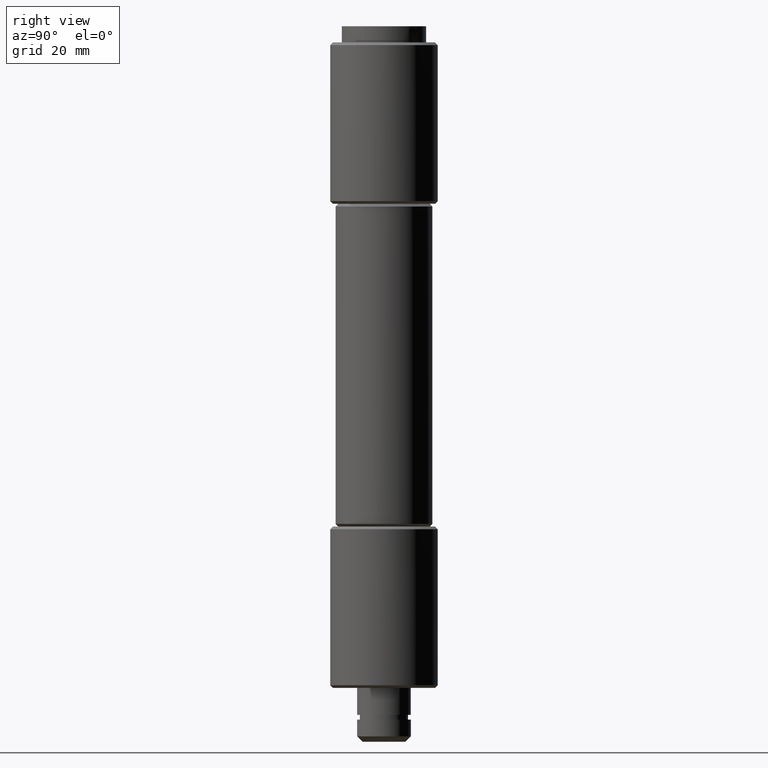
[diagram: clean part render]
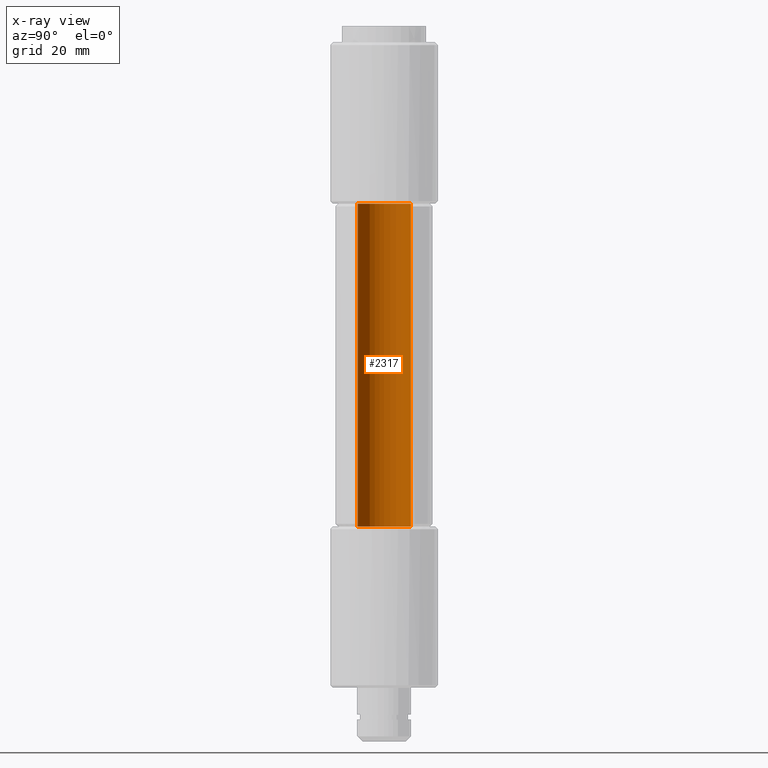
[diagram: x-ray — body ghosted, one internal face saturated and labeled with its STEP entity id]
A machine part, right view, then the same camera in x-ray: the body is ghosted and one INTERNAL B-rep face — a face not visible from any outside direction — is saturated and labeled: STEP entity #2317.
In plain terms, the highlighted face is a freeform B-spline surface patch.
Its self-contained STEP definition (entity closure, byte-faithful):
#2215=CARTESIAN_POINT('',(0.590171173283792,-4.965047631818332,101.500000000000030));
#2216=CARTESIAN_POINT('',(0.448073643189888,-4.981938077243028,101.500000000000010));
#2217=CARTESIAN_POINT('',(0.305242697674285,-4.990673992109334,101.500000000000000));
#2218=CARTESIAN_POINT('',(-4.685431294435048,-5.295916689783620,101.500000000000010));
#2219=CARTESIAN_POINT('',(-4.990673992109334,-0.305242697674285,101.500000000000000));
#2220=CARTESIAN_POINT('',(-5.295916689783620,4.685431294435048,101.500000000000010));
#2221=CARTESIAN_POINT('',(-0.305242697674285,4.990673992109334,101.500000000000000));
#2222=CARTESIAN_POINT('',(0.590171173283792,-4.965047631818332,38.462500000000006));
#2223=CARTESIAN_POINT('',(0.448073643189888,-4.981938077243028,38.462499999999999));
#2224=CARTESIAN_POINT('',(0.305242697674285,-4.990673992109334,38.462499999999991));
#2225=CARTESIAN_POINT('',(-4.685431294435048,-5.295916689783620,38.462499999999991));
#2226=CARTESIAN_POINT('',(-4.990673992109334,-0.305242697674285,38.462499999999991));
#2227=CARTESIAN_POINT('',(-5.295916689783620,4.685431294435048,38.462499999999991));
#2228=CARTESIAN_POINT('',(-0.305242697674285,4.990673992109334,38.462499999999991));
#2236=(BOUNDED_SURFACE()B_SPLINE_SURFACE(2,1,((#2215,#2222),(#2216,#2223),(#2217,#2224),(#2218,#2225),(#2219,#2226),(#2220,#2227),(#2221,#2228)),.UNSPECIFIED.,.F.,.F.,.U.)B_SPLINE_SURFACE_WITH_KNOTS((3,2,2,3),(2,2),(0.0,0.331370849898476,8.615642097360375,16.899913344822270),(0.0,63.037500000000023),.UNSPECIFIED.)GEOMETRIC_REPRESENTATION_ITEM()RATIONAL_B_SPLINE_SURFACE(((0.977505800795127,0.977505800795127),(0.988284271247462,0.988284271247462),(1.0,1.0),(0.707106781186548,0.707106781186548),(1.0,1.0),(0.707106781186548,0.707106781186548),(1.0,1.0)))REPRESENTATION_ITEM('')SURFACE());
#2237=CARTESIAN_POINT('',(0.590171173576404,-4.965047631783550,40.0));
#2238=VERTEX_POINT('',#2237);
#2239=CARTESIAN_POINT('',(-5.0,0.0,40.0));
#2240=VERTEX_POINT('',#2239);
#2241=CARTESIAN_POINT('',(0.590171173576404,-4.965047631783550,40.0));
#2242=CARTESIAN_POINT('',(0.296120598555256,-5.000000000000001,39.999999999999993));
#2243=CARTESIAN_POINT('',(0.0,-5.0,40.0));
#2244=CARTESIAN_POINT('',(-5.000000000000001,-5.000000000000001,39.999999999999993));
#2245=CARTESIAN_POINT('',(-5.0,0.0,40.0));
#2253=(BOUNDED_CURVE()B_SPLINE_CURVE(2,(#2241,#2242,#2243,#2244,#2245),.UNSPECIFIED.,.F.,.U.)B_SPLINE_CURVE_WITH_KNOTS((3,2,3),(0.229562473495724,0.250000000000000,0.500000000000000),.UNSPECIFIED.)CURVE()GEOMETRIC_REPRESENTATION_ITEM()RATIONAL_B_SPLINE_CURVE((0.956026754148841,0.976055948310310,1.0,0.707106781186548,1.0))REPRESENTATION_ITEM(''));
#2254=EDGE_CURVE('',#2238,#2240,#2253,.T.);
#2255=ORIENTED_EDGE('',*,*,#2254,.T.);
#2256=CARTESIAN_POINT('',(-0.305242697984912,4.990673992090336,39.999999999999993));
#2257=VERTEX_POINT('',#2256);
#2258=CARTESIAN_POINT('',(-5.0,0.0,40.0));
#2259=CARTESIAN_POINT('',(-5.0,4.703530333941859,39.999999999999993));
#2260=CARTESIAN_POINT('',(-0.305242697984912,4.990673992090336,39.999999999999986));
#2268=(BOUNDED_CURVE()B_SPLINE_CURVE(2,(#2258,#2259,#2260),.UNSPECIFIED.,.F.,.U.)B_SPLINE_CURVE_WITH_KNOTS((3,3),(0.500000000000000,0.739332962220489),.UNSPECIFIED.)CURVE()GEOMETRIC_REPRESENTATION_ITEM()RATIONAL_B_SPLINE_CURVE((1.0,0.719603993308331,0.976072041627167))REPRESENTATION_ITEM(''));
#2269=EDGE_CURVE('',#2240,#2257,#2268,.T.);
#2270=ORIENTED_EDGE('',*,*,#2269,.T.);
#2271=CARTESIAN_POINT('',(-0.305242697984910,4.990673992090335,100.0));
#2272=VERTEX_POINT('',#2271);
#2273=CARTESIAN_POINT('',(-0.305242697984910,4.990673992090335,100.0));
#2274=CARTESIAN_POINT('',(-0.305242697984912,4.990673992090336,39.999999999999993));
#2275=QUASI_UNIFORM_CURVE('',1,(#2273,#2274),.UNSPECIFIED.,.F.,.U.);
#2276=EDGE_CURVE('',#2272,#2257,#2275,.T.);
#2277=ORIENTED_EDGE('',*,*,#2276,.F.);
#2278=CARTESIAN_POINT('',(-5.0,0.0,100.0));
#2279=VERTEX_POINT('',#2278);
#2280=CARTESIAN_POINT('',(-5.0,0.0,100.0));
#2281=CARTESIAN_POINT('',(-5.0,4.703530333941859,100.000000000000010));
#2282=CARTESIAN_POINT('',(-0.305242697984910,4.990673992090335,100.0));
#2290=(BOUNDED_CURVE()B_SPLINE_CURVE(2,(#2280,#2281,#2282),.UNSPECIFIED.,.F.,.U.)B_SPLINE_CURVE_WITH_KNOTS((3,3),(0.500000000000000,0.739332962220489),.UNSPECIFIED.)CURVE()GEOMETRIC_REPRESENTATION_ITEM()RATIONAL_B_SPLINE_CURVE((1.0,0.719603993308331,0.976072041627167))REPRESENTATION_ITEM(''));
#2291=EDGE_CURVE('',#2279,#2272,#2290,.T.);
#2292=ORIENTED_EDGE('',*,*,#2291,.F.);
#2293=CARTESIAN_POINT('',(0.590171173576404,-4.965047631783550,100.0));
#2294=VERTEX_POINT('',#2293);
#2295=CARTESIAN_POINT('',(0.590171173576404,-4.965047631783550,100.0));
#2296=CARTESIAN_POINT('',(0.296120598555256,-5.000000000000001,100.0));
#2297=CARTESIAN_POINT('',(0.0,-5.0,100.0));
#2298=CARTESIAN_POINT('',(-5.000000000000001,-5.000000000000001,100.0));
#2299=CARTESIAN_POINT('',(-5.0,0.0,100.0));
#2307=(BOUNDED_CURVE()B_SPLINE_CURVE(2,(#2295,#2296,#2297,#2298,#2299),.UNSPECIFIED.,.F.,.U.)B_SPLINE_CURVE_WITH_KNOTS((3,2,3),(0.229562473495724,0.250000000000000,0.500000000000000),.UNSPECIFIED.)CURVE()GEOMETRIC_REPRESENTATION_ITEM()RATIONAL_B_SPLINE_CURVE((0.956026754148841,0.976055948310310,1.0,0.707106781186548,1.0))REPRESENTATION_ITEM(''));
#2308=EDGE_CURVE('',#2294,#2279,#2307,.T.);
#2309=ORIENTED_EDGE('',*,*,#2308,.F.);
#2310=CARTESIAN_POINT('',(0.590171173576404,-4.965047631783550,100.0));
#2311=CARTESIAN_POINT('',(0.590171173576404,-4.965047631783550,40.0));
#2312=QUASI_UNIFORM_CURVE('',1,(#2310,#2311),.UNSPECIFIED.,.F.,.U.);
#2313=EDGE_CURVE('',#2294,#2238,#2312,.T.);
#2314=ORIENTED_EDGE('',*,*,#2313,.T.);
#2315=EDGE_LOOP('',(#2255,#2270,#2277,#2292,#2309,#2314));
#2316=FACE_OUTER_BOUND('',#2315,.T.);
#2317=ADVANCED_FACE('',(#2316),#2236,.F.);